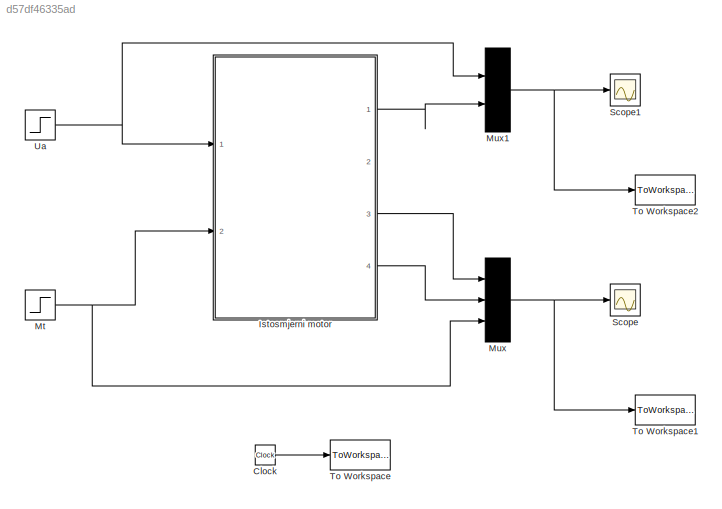
MODEL slx_d57df46335ad
KIND model
CONFIG AbsTol = auto
CONFIG EnableMultiTasking = off
CONFIG FixedStep = auto
CONFIG MaxStep = auto
CONFIG MinStep = auto
CONFIG RelTol = 1e-3
CONFIG SampleTimeConstraint = Unconstrained
CONFIG Solver = VariableStepAuto
CONFIG SolverName = VariableStepAuto
CONFIG StartTime = 0.0
CONFIG StopTime = 10.0
BLOCK [Clock] Clock
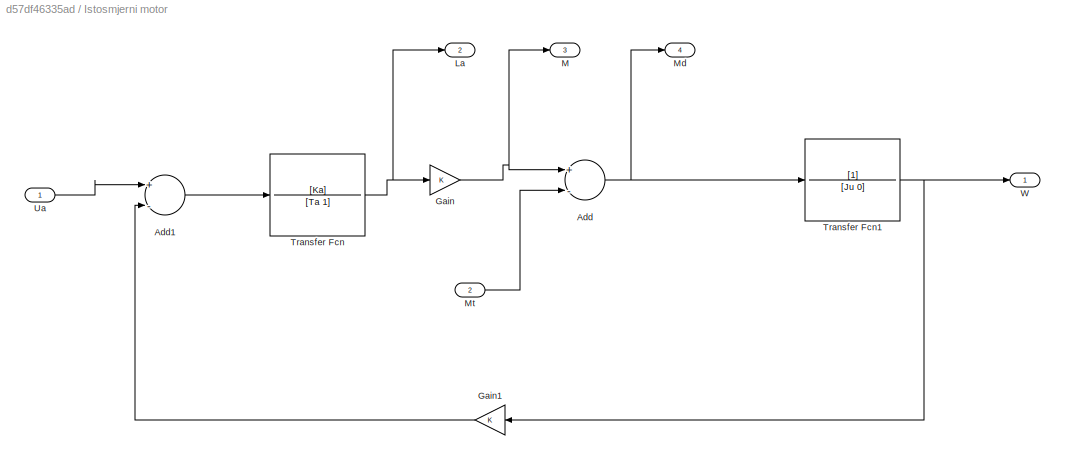
BLOCK [SubSystem] Istosmjerni motor
  Ports = [2, 4]
  RequestExecContextInheritance = off
  Variant = off
BLOCK [Sum] Istosmjerni motor/Add
  InputSameDT = off
  Inputs = +-
  OutDataTypeStr = Inherit: Inherit via internal rule
  Ports = [2, 1]
  SaturateOnIntegerOverflow = off
BLOCK [Sum] Istosmjerni motor/Add1
  InputSameDT = off
  Inputs = +-
  OutDataTypeStr = Inherit: Inherit via internal rule
  Ports = [2, 1]
  SaturateOnIntegerOverflow = off
BLOCK [Gain] Istosmjerni motor/Gain
  Gain = K
  OutDataTypeStr = Inherit: Inherit via internal rule
  ParamDataTypeStr = Inherit: Inherit via internal rule
  SaturateOnIntegerOverflow = off
BLOCK [Gain] Istosmjerni motor/Gain1
  OutDataTypeStr = Inherit: Inherit via internal rule
  ParamDataTypeStr = Inherit: Inherit via internal rule
  SaturateOnIntegerOverflow = off
BLOCK [Outport] Istosmjerni motor/La
  IconDisplay = Port number
  Port = 2
BLOCK [Outport] Istosmjerni motor/M
  IconDisplay = Port number
  Port = 3
BLOCK [Outport] Istosmjerni motor/Md
  IconDisplay = Port number
  Port = 4
BLOCK [Inport] Istosmjerni motor/Mt
  IconDisplay = Port number
  Port = 2
BLOCK [TransferFcn] Istosmjerni motor/Transfer Fcn
  Denominator = [Ta 1]
  Numerator = [Ka]
BLOCK [TransferFcn] Istosmjerni motor/Transfer Fcn1
  Denominator = [Ju 0]
BLOCK [Inport] Istosmjerni motor/Ua
  IconDisplay = Port number
BLOCK [Outport] Istosmjerni motor/W
  IconDisplay = Port number
BLOCK [Step] Mt
  After = 5
  Before = 2
  SampleTime = 0
  Time = 5
BLOCK [Mux] Mux
  DisplayOption = bar
  Inputs = 3
  Ports = [3, 1]
BLOCK [Mux] Mux1
  DisplayOption = bar
  Inputs = 2
  Ports = [2, 1]
BLOCK [Scope] Scope
  NumInputPorts = 1
  Ports = [1]
  ScopeSpecificationString = Simulink.scopes.TimeScopeBlockCfg('CurrentConfiguration', extmgr.ConfigurationSet(extmgr.Configuration('Core','General UI',true),extmgr.Configuration('Core','Source UI',true),extmgr.Configuration('Sources','WiredSimulink',true),extmgr.Configuration('Visuals','Time Domain',true,'SerializedDisplays',{struct('MinYLimReal','-4.49448','MaxYLimReal','10.4497','YLabelReal','','MinYLimMag','0.00000','MaxY...<+1396ch>
BLOCK [Scope] Scope1
  NumInputPorts = 1
  Ports = [1]
  ScopeSpecificationString = Simulink.scopes.TimeScopeBlockCfg('CurrentConfiguration', extmgr.ConfigurationSet(extmgr.Configuration('Core','General UI',true),extmgr.Configuration('Core','Source UI',true),extmgr.Configuration('Sources','WiredSimulink',true,'DataLoggingVariableName','ScopeData1'),extmgr.Configuration('Visuals','Time Domain',true,'SerializedDisplays',{struct('MinYLimReal','-59.90652','MaxYLimReal','173.32295','Y...<+1422ch>
BLOCK [ToWorkspace] To Workspace
  FixptAsFi = on
  MaxDataPoints = inf
  Ports = [1]
  SampleTime = -1
  Save2DSignal = 3-D array (concatenate along third dimension)
  VariableName = t
BLOCK [ToWorkspace] To Workspace1
  FixptAsFi = on
  MaxDataPoints = inf
  Ports = [1]
  SampleTime = -1
  Save2DSignal = 3-D array (concatenate along third dimension)
  VariableName = Momenti
BLOCK [ToWorkspace] To Workspace2
  FixptAsFi = on
  MaxDataPoints = inf
  Ports = [1]
  SampleTime = -1
  Save2DSignal = 3-D array (concatenate along third dimension)
  VariableName = Napon
BLOCK [Step] Ua
  After = 150
  SampleTime = 0
LINE Clock:1 -> To Workspace:1
LINE Istosmjerni motor/Add1:1 -> Istosmjerni motor/Transfer Fcn:1
NET Istosmjerni motor/Add:1 -> Istosmjerni motor/Md:1, Istosmjerni motor/Transfer Fcn1:1
LINE Istosmjerni motor/Gain1:1 -> Istosmjerni motor/Add1:2
NET Istosmjerni motor/Gain:1 -> Istosmjerni motor/Add:1, Istosmjerni motor/M:1
LINE Istosmjerni motor/Mt:1 -> Istosmjerni motor/Add:2
NET Istosmjerni motor/Transfer Fcn1:1 -> Istosmjerni motor/Gain1:1, Istosmjerni motor/W:1
NET Istosmjerni motor/Transfer Fcn:1 -> Istosmjerni motor/Gain:1, Istosmjerni motor/La:1
LINE Istosmjerni motor/Ua:1 -> Istosmjerni motor/Add1:1
LINE Istosmjerni motor:1 -> Mux1:2
LINE Istosmjerni motor:3 -> Mux:1
LINE Istosmjerni motor:4 -> Mux:2
NET Mt:1 -> Istosmjerni motor:2, Mux:3
NET Mux1:1 -> Scope1:1, To Workspace2:1
NET Mux:1 -> Scope:1, To Workspace1:1
NET Ua:1 -> Istosmjerni motor:1, Mux1:1
note: NET lines group one-source signal fan-out (src -> all destinations, sorted); 1:1 wires keep LINE
